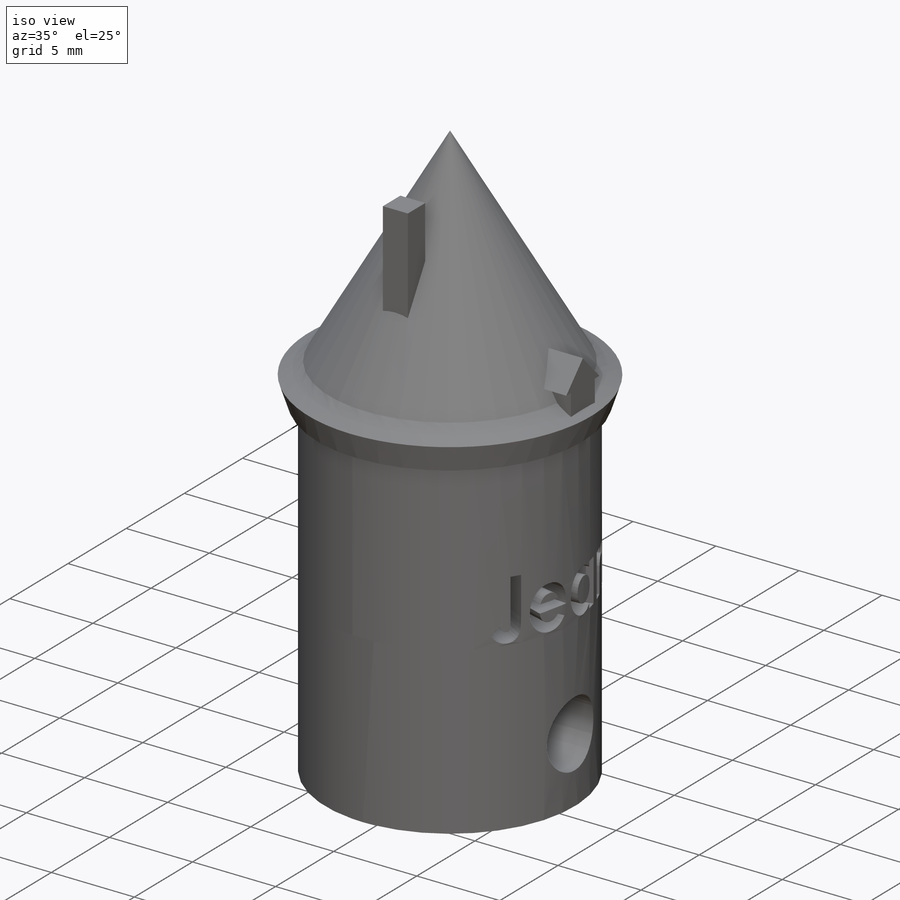
[diagram: iso view]
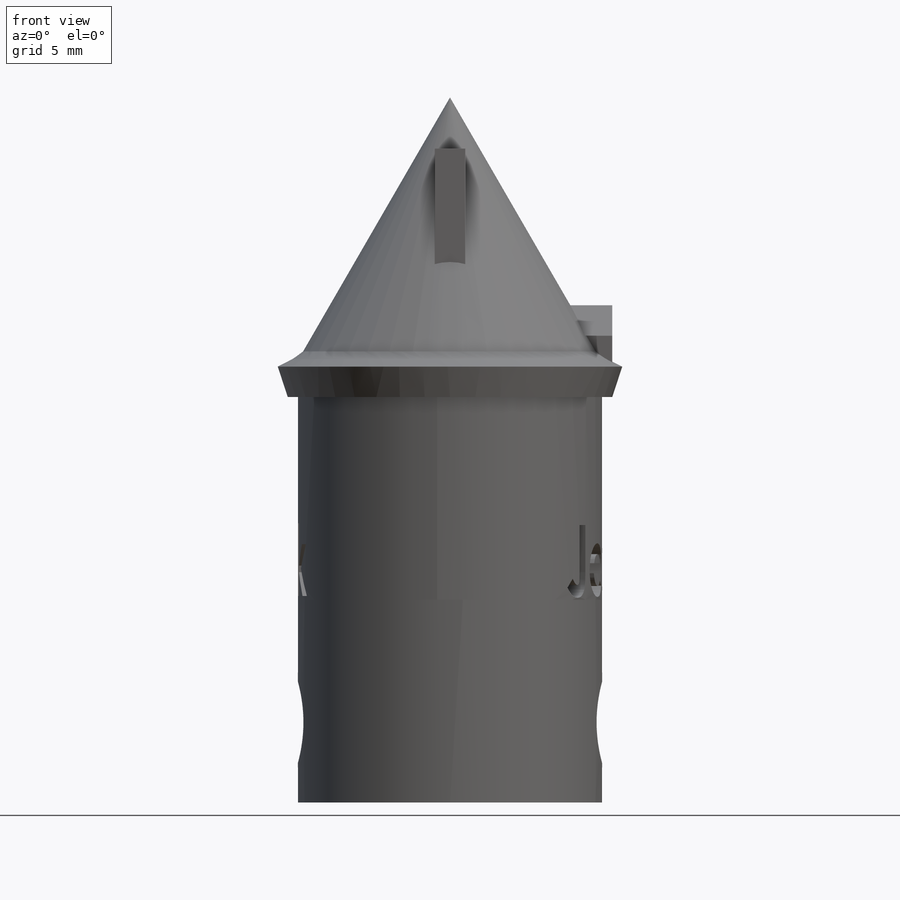
[diagram: front view]
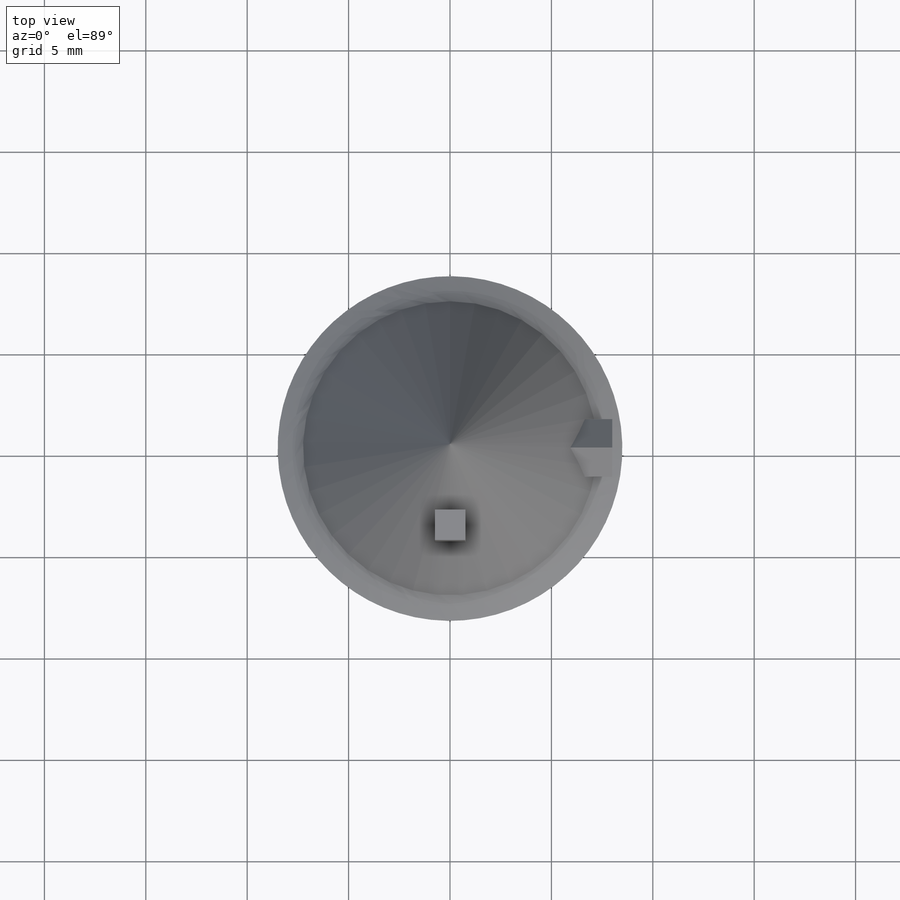
[diagram: top view]
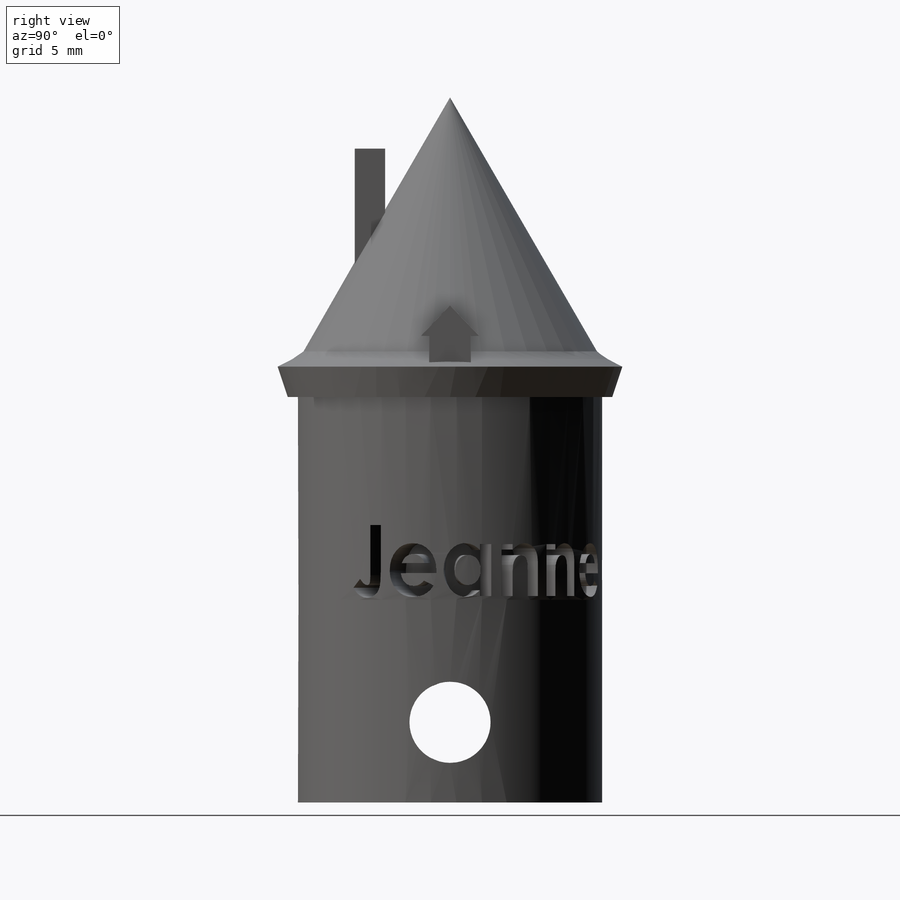
[diagram: right view]
SOLIDWORKS PART (.sldprt)
format: sldprt  version: not decoded by parser v0  size: 736,256 bytes
history: native  units: mm
features: sketch x9, plane x6, extrude x4, material x1, revolve x1, cut_extrude x1 (+10 scaffold rows collapsed)
feature tree (32):
  scaffold x10  (default folders/planes/origin — collapsed)
  material  "Matériau <non spécifié>"
  plane  "Plan de face"
  plane  "Plan de dessus"
  plane  "Plan de droite"
  sketch  "Esquisse1"  dims[D1=~15.621047mm]
  extrude  "Boss.-Extru.1"  Depth=20mm
  sketch  "Esquisse2"  dims[D1=~8.52509mm]
  plane  "Plan1"  Offset=1.5mm
  sketch  "Esquisse3"  dims[D1=8.0mm]
  plane  "Plan2"  Offset=0.75mm
  sketch  "Esquisse5"  dims[D1=14.5mm]
  extrude  "Lissage5"  [1 undecoded]
  sketch  "Esquisse6"
  revolve  "Révolution1"  Angle=360deg
  sketch  "Esquisse7"  dims[D1=1.5mm D2=1.5mm D3=0.75mm]
  extrude  "Boss.-Extru.2"  Depth=10mm
  sketch  "Esquisse9"  dims[D1=1.5mm]
  extrude  "Boss.-Extru.3"  Depth=8mm
  sketch  "Esquisse10"  dims[D1=~2.317398mm]
  cut_extrude  "Enlèv. mat.-Extru.1"  Depth=8mm
  plane  "Plan4"
  sketch  "Esquisse12"  dims[D1=2.0mm]
decode coverage: 13 of 15 modeling features carry decoded parameters
note: ~ marks probable driven/reference dimensions
note: 1 parameter value undecoded
note: suppression state not decoded; provenance and decode notes live in map.json
